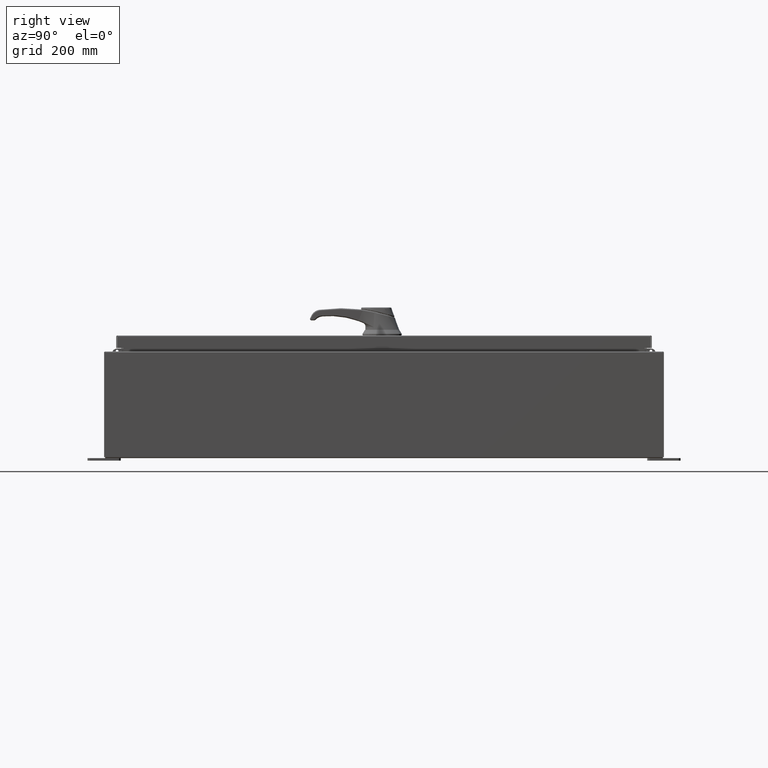
[diagram: clean part render]
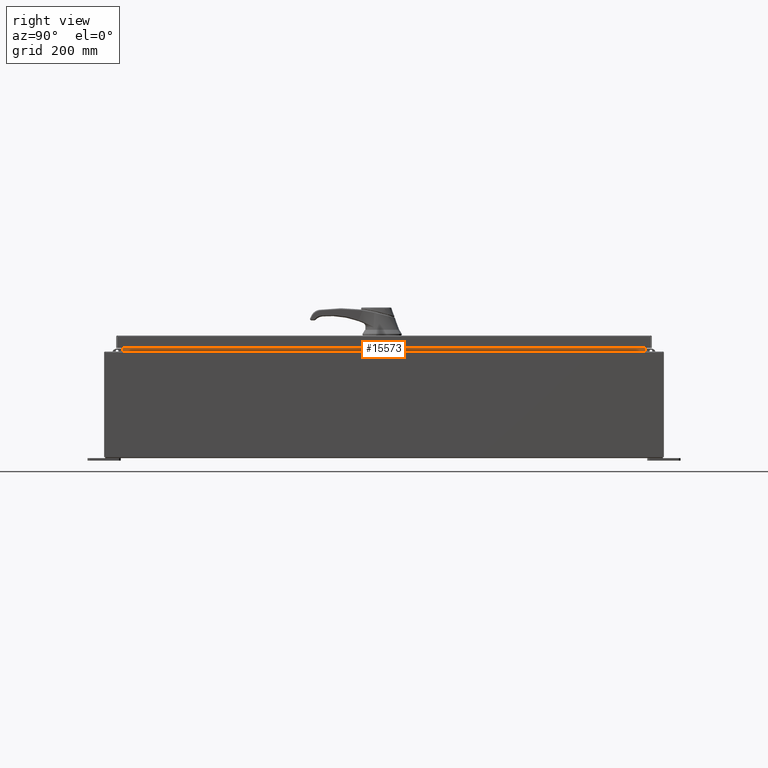
[diagram: same view with one face highlighted and labeled with its STEP entity id]
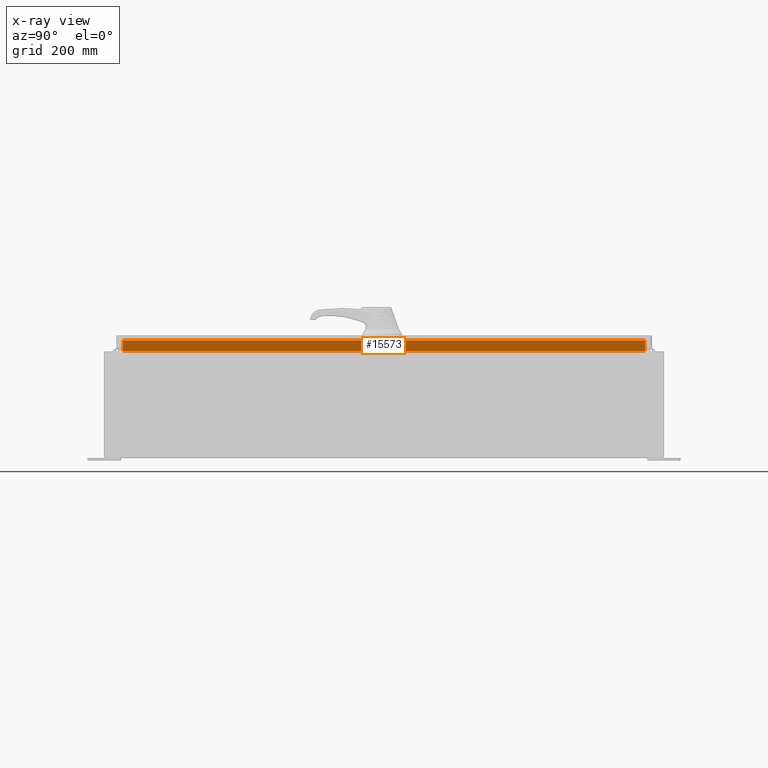
[diagram: x-ray of the same camera — body ghosted, the highlighted face saturated]
A machine part, right view. The second image highlights one B-rep face of the part: STEP entity #15573.
The next image is the same camera in x-ray: the body ghosted, the highlighted face saturated — about 0% of this face is hidden behind the body in this view.
In plain terms, the highlighted planar face has unit normal (1, -0, -0).
Its self-contained STEP definition (entity closure, byte-faithful):
#3965 = EDGE_CURVE ( 'NONE', #20576, #25968, #6031, .T. ) ;
#6031 = LINE ( 'NONE', #104732, #29327 ) ;
#7320 = DIRECTION ( 'NONE',  ( -4.723826639860392000E-015, 0.0000000000000000000, -1.000000000000000000 ) ) ;
#9156 = DIRECTION ( 'NONE',  ( 4.723826639860403100E-015, -0.0000000000000000000, 1.000000000000000000 ) ) ;
#10971 = FACE_OUTER_BOUND ( 'NONE', #53400, .T. ) ;
#11786 = DIRECTION ( 'NONE',  ( -4.723826639860392000E-015, -0.0000000000000000000, -1.000000000000000000 ) ) ;
#15573 = ADVANCED_FACE ( 'NONE', ( #10971 ), #26851, .T. ) ;
#20576 = VERTEX_POINT ( 'NONE', #83786 ) ;
#25968 = VERTEX_POINT ( 'NONE', #104676 ) ;
#26851 = PLANE ( 'NONE',  #69434 ) ;
#29327 = VECTOR ( 'NONE', #11786, 39.37007874015748100 ) ;
#33181 = CARTESIAN_POINT ( 'NONE',  ( 13.69970000000003400, -19.59374999999998900, 8.762900000000010800 ) ) ;
#35979 = CARTESIAN_POINT ( 'NONE',  ( 13.69970000000003200, -19.59374999999998900, 7.938300000000009700 ) ) ;
#39122 = CARTESIAN_POINT ( 'NONE',  ( 13.69970000000003600, -19.59374999999998900, 8.850600000000008900 ) ) ;
#45314 = ORIENTED_EDGE ( 'NONE', *, *, #76502, .F. ) ;
#50433 = VERTEX_POINT ( 'NONE', #35979 ) ;
#53400 = EDGE_LOOP ( 'NONE', ( #125117, #64024, #45314, #115003 ) ) ;
#54828 = LINE ( 'NONE', #33181, #57932 ) ;
#56918 = CARTESIAN_POINT ( 'NONE',  ( 13.69969999999999500, -1.804570990931609600E-030, -6.471500781809539400E-014 ) ) ;
#57932 = VECTOR ( 'NONE', #82791, 39.37007874015748100 ) ;
#64024 = ORIENTED_EDGE ( 'NONE', *, *, #94052, .F. ) ;
#66053 = VECTOR ( 'NONE', #69172, 39.37007874015748100 ) ;
#66856 = DIRECTION ( 'NONE',  ( 1.000000000000000000, -1.317233947408782900E-031, -4.723826639860392000E-015 ) ) ;
#69172 = DIRECTION ( 'NONE',  ( 0.0000000000000000000, -1.000000000000000000, 5.576978360271544800E-017 ) ) ;
#69434 = AXIS2_PLACEMENT_3D ( 'NONE', #56918, #66856, #7320 ) ;
#76502 = EDGE_CURVE ( 'NONE', #50433, #128313, #90994, .T. ) ;
#82791 = DIRECTION ( 'NONE',  ( 0.0000000000000000000, 1.000000000000000000, 0.0000000000000000000 ) ) ;
#83786 = CARTESIAN_POINT ( 'NONE',  ( 13.69970000000003400, 19.59374999999998900, 8.762900000000010800 ) ) ;
#90994 = LINE ( 'NONE', #39122, #117376 ) ;
#91272 = CARTESIAN_POINT ( 'NONE',  ( 13.69970000000003600, -19.59374999999998900, 8.762900000000010800 ) ) ;
#94052 = EDGE_CURVE ( 'NONE', #128313, #20576, #54828, .T. ) ;
#104676 = CARTESIAN_POINT ( 'NONE',  ( 13.69970000000003200, 19.59374999999998900, 7.938300000000009700 ) ) ;
#104732 = CARTESIAN_POINT ( 'NONE',  ( 13.69970000000003200, 19.59374999999998900, 7.925300000000008900 ) ) ;
#115003 = ORIENTED_EDGE ( 'NONE', *, *, #122701, .F. ) ;
#117376 = VECTOR ( 'NONE', #9156, 39.37007874015748100 ) ;
#118720 = CARTESIAN_POINT ( 'NONE',  ( 13.69970000000003400, 19.59374999999998900, 7.938300000000008800 ) ) ;
#118924 = LINE ( 'NONE', #118720, #66053 ) ;
#122701 = EDGE_CURVE ( 'NONE', #25968, #50433, #118924, .T. ) ;
#125117 = ORIENTED_EDGE ( 'NONE', *, *, #3965, .F. ) ;
#128313 = VERTEX_POINT ( 'NONE', #91272 ) ;